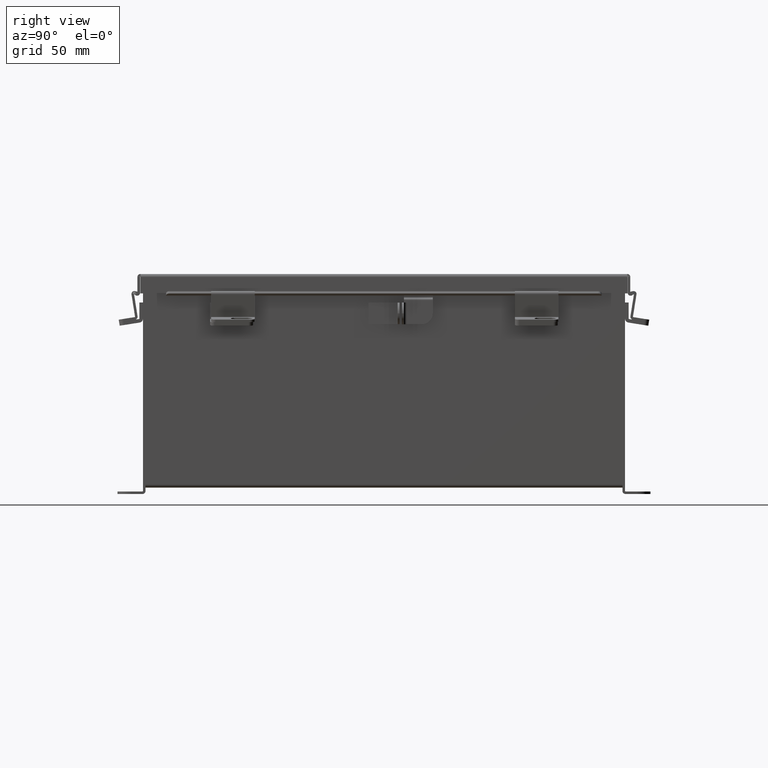
[diagram: clean part render]
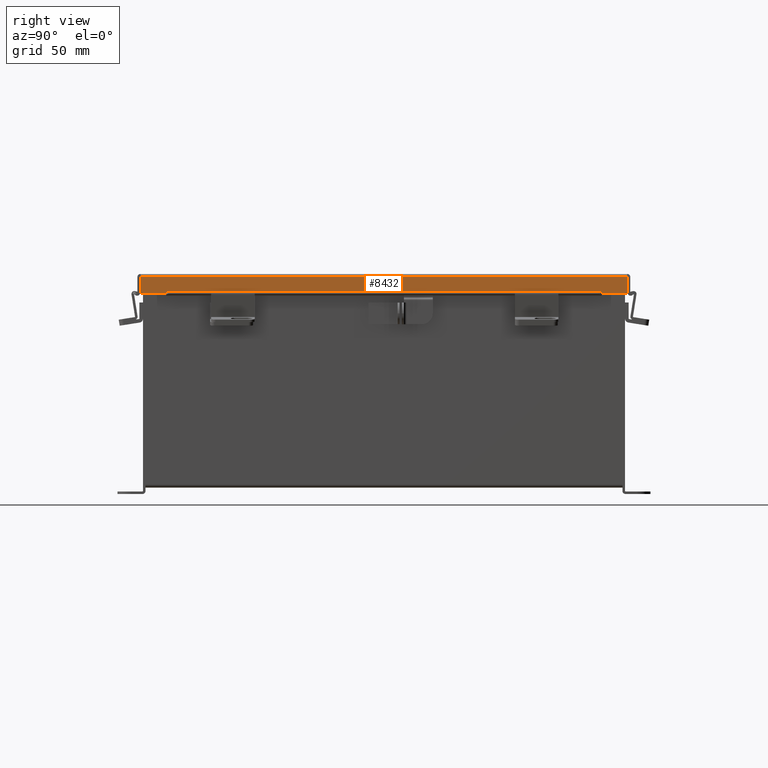
[diagram: same view with one face highlighted and labeled with its STEP entity id]
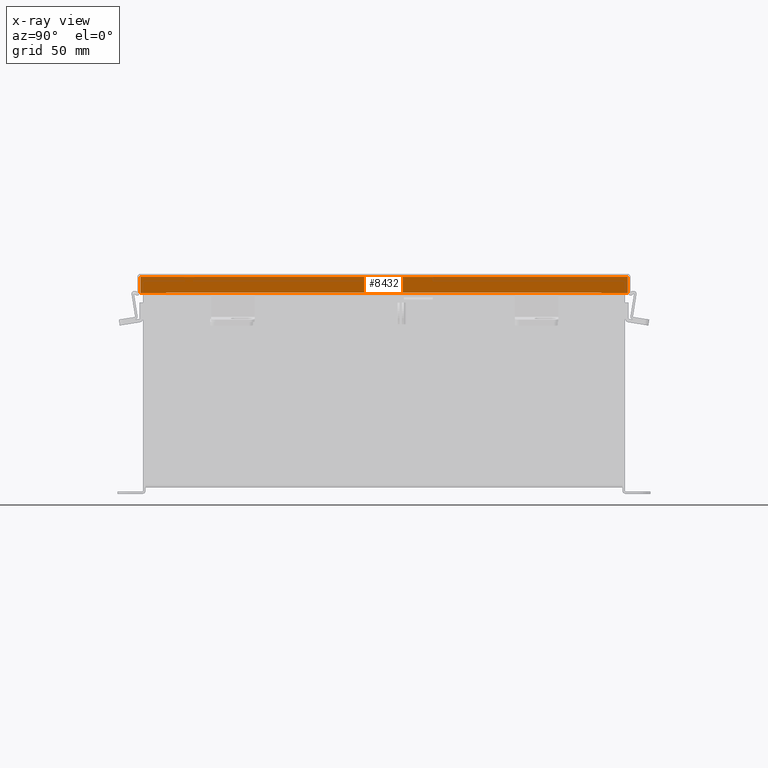
[diagram: x-ray of the same camera — body ghosted, the highlighted face saturated]
A machine part, right view. The second image highlights one B-rep face of the part: STEP entity #8432.
The next image is the same camera in x-ray: the body ghosted, the highlighted face saturated — about 0% of this face is hidden behind the body in this view.
In plain terms, the highlighted planar face has unit normal (-1, 0, -0).
Its self-contained STEP definition (entity closure, byte-faithful):
#370 = DIRECTION ( 'NONE',  ( -4.484872552701437800E-015, 0.0000000000000000000, 1.000000000000000000 ) ) ;
#1174 = DIRECTION ( 'NONE',  ( 1.401985044024106600E-013, 0.0000000000000000000, -1.000000000000000000 ) ) ;
#1283 = VERTEX_POINT ( 'NONE', #2334 ) ;
#1434 = VERTEX_POINT ( 'NONE', #18467 ) ;
#1725 = VERTEX_POINT ( 'NONE', #16468 ) ;
#2162 = VERTEX_POINT ( 'NONE', #5104 ) ;
#2334 = CARTESIAN_POINT ( 'NONE',  ( -6.156250000000000000, 7.074478932188136500, 0.01299999999999980700 ) ) ;
#2337 = CARTESIAN_POINT ( 'NONE',  ( -6.156250000000000000, 7.156249999999999100, 0.01299999999999978100 ) ) ;
#2863 = DIRECTION ( 'NONE',  ( -0.0000000000000000000, -1.000000000000000000, -0.0000000000000000000 ) ) ;
#2909 = EDGE_LOOP ( 'NONE', ( #5904, #4457, #9840, #11120, #16765, #14045, #16782, #6723 ) ) ;
#3007 = VECTOR ( 'NONE', #7490, 39.37007874015748100 ) ;
#3614 = VECTOR ( 'NONE', #18550, 39.37007874015748100 ) ;
#3801 = DIRECTION ( 'NONE',  ( -3.424136966969389700E-031, 1.000000000000000000, 7.634859021594447800E-017 ) ) ;
#4273 = CARTESIAN_POINT ( 'NONE',  ( -6.156250000000002700, 6.324478932188134700, 0.4872999999999997300 ) ) ;
#4457 = ORIENTED_EDGE ( 'NONE', *, *, #11215, .T. ) ;
#4586 = AXIS2_PLACEMENT_3D ( 'NONE', #7546, #17775, #9015 ) ;
#4641 = VERTEX_POINT ( 'NONE', #10675 ) ;
#4835 = CARTESIAN_POINT ( 'NONE',  ( -6.156250000000002700, -6.324478932188135600, 0.4717115427318778200 ) ) ;
#5104 = CARTESIAN_POINT ( 'NONE',  ( -6.156250000000002700, 7.074478932188134700, 0.4872999999999997300 ) ) ;
#5109 = VECTOR ( 'NONE', #18061, 39.37007874015748100 ) ;
#5174 = VECTOR ( 'NONE', #370, 39.37007874015748100 ) ;
#5429 = EDGE_CURVE ( 'NONE', #1434, #4641, #16570, .T. ) ;
#5904 = ORIENTED_EDGE ( 'NONE', *, *, #12355, .F. ) ;
#6146 = CARTESIAN_POINT ( 'NONE',  ( -6.156250000000002700, 6.324478932188135600, 0.4717115427318778200 ) ) ;
#6151 = EDGE_CURVE ( 'NONE', #1725, #17048, #17250, .T. ) ;
#6643 = VERTEX_POINT ( 'NONE', #14307 ) ;
#6723 = ORIENTED_EDGE ( 'NONE', *, *, #5429, .F. ) ;
#7490 = DIRECTION ( 'NONE',  ( -0.0000000000000000000, 1.000000000000000000, 0.0000000000000000000 ) ) ;
#7546 = CARTESIAN_POINT ( 'NONE',  ( -6.156250000000000000, 0.0000000000000000000, -2.787081030857980700E-014 ) ) ;
#7665 = VECTOR ( 'NONE', #3801, 39.37007874015748100 ) ;
#8111 = LINE ( 'NONE', #2337, #7665 ) ;
#8382 = CARTESIAN_POINT ( 'NONE',  ( -6.156250000000002700, -7.074478932188136500, 0.4872999999999997300 ) ) ;
#8410 = EDGE_CURVE ( 'NONE', #17048, #6643, #10309, .T. ) ;
#8432 = ADVANCED_FACE ( 'NONE', ( #9837 ), #16286, .F. ) ;
#9015 = DIRECTION ( 'NONE',  ( 4.484872552701437800E-015, 0.0000000000000000000, -1.000000000000000000 ) ) ;
#9047 = LINE ( 'NONE', #4835, #5109 ) ;
#9558 = LINE ( 'NONE', #10622, #5174 ) ;
#9837 = FACE_OUTER_BOUND ( 'NONE', #2909, .T. ) ;
#9840 = ORIENTED_EDGE ( 'NONE', *, *, #14457, .F. ) ;
#10309 = LINE ( 'NONE', #16220, #3007 ) ;
#10389 = VECTOR ( 'NONE', #12440, 39.37007874015748100 ) ;
#10622 = CARTESIAN_POINT ( 'NONE',  ( -6.156250000000000000, 7.074478932188134700, -3.350199796867981300E-016 ) ) ;
#10675 = CARTESIAN_POINT ( 'NONE',  ( -6.156250000000002700, -6.324478932188135600, 0.4717115427318778200 ) ) ;
#11120 = ORIENTED_EDGE ( 'NONE', *, *, #16953, .F. ) ;
#11215 = EDGE_CURVE ( 'NONE', #16068, #2162, #15767, .T. ) ;
#11481 = CARTESIAN_POINT ( 'NONE',  ( -6.156250000000004400, 6.324478932188134700, 0.4872999999999985100 ) ) ;
#12355 = EDGE_CURVE ( 'NONE', #16068, #1434, #17673, .T. ) ;
#12440 = DIRECTION ( 'NONE',  ( -4.484872552701437800E-015, 0.0000000000000000000, 1.000000000000000000 ) ) ;
#12719 = VECTOR ( 'NONE', #2863, 39.37007874015748100 ) ;
#13389 = CARTESIAN_POINT ( 'NONE',  ( -6.156250000000000000, -7.074478932188136500, -2.787081030857980700E-014 ) ) ;
#14045 = ORIENTED_EDGE ( 'NONE', *, *, #8410, .T. ) ;
#14307 = CARTESIAN_POINT ( 'NONE',  ( -6.156250000000002700, -6.324478932188135600, 0.4872999999999997300 ) ) ;
#14457 = EDGE_CURVE ( 'NONE', #1283, #2162, #9558, .T. ) ;
#15635 = EDGE_CURVE ( 'NONE', #4641, #6643, #9047, .T. ) ;
#15767 = LINE ( 'NONE', #17056, #3614 ) ;
#16068 = VERTEX_POINT ( 'NONE', #4273 ) ;
#16220 = CARTESIAN_POINT ( 'NONE',  ( -6.156250000000002700, 0.0000000000000000000, 0.4872999999999997300 ) ) ;
#16286 = PLANE ( 'NONE',  #4586 ) ;
#16468 = CARTESIAN_POINT ( 'NONE',  ( -6.156250000000000000, -7.074478932188136500, 0.01299999999999869500 ) ) ;
#16570 = LINE ( 'NONE', #6146, #12719 ) ;
#16765 = ORIENTED_EDGE ( 'NONE', *, *, #6151, .T. ) ;
#16782 = ORIENTED_EDGE ( 'NONE', *, *, #15635, .F. ) ;
#16953 = EDGE_CURVE ( 'NONE', #1725, #1283, #8111, .T. ) ;
#17048 = VERTEX_POINT ( 'NONE', #8382 ) ;
#17056 = CARTESIAN_POINT ( 'NONE',  ( -6.156250000000002700, 0.0000000000000000000, 0.4872999999999997300 ) ) ;
#17250 = LINE ( 'NONE', #13389, #10389 ) ;
#17673 = LINE ( 'NONE', #11481, #18133 ) ;
#17775 = DIRECTION ( 'NONE',  ( 1.000000000000000000, 0.0000000000000000000, 4.484872552701437800E-015 ) ) ;
#18061 = DIRECTION ( 'NONE',  ( -7.009925220120348700E-014, 0.0000000000000000000, 1.000000000000000000 ) ) ;
#18133 = VECTOR ( 'NONE', #1174, 39.37007874015748100 ) ;
#18467 = CARTESIAN_POINT ( 'NONE',  ( -6.156250000000002700, 6.324478932188134700, 0.4717115427318778200 ) ) ;
#18550 = DIRECTION ( 'NONE',  ( -0.0000000000000000000, 1.000000000000000000, 0.0000000000000000000 ) ) ;